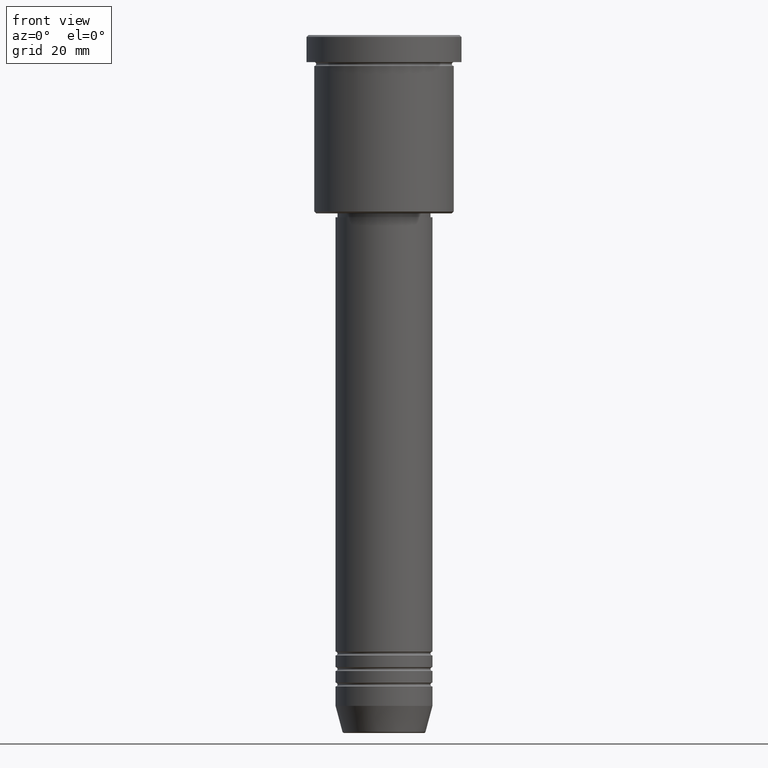
[diagram: clean part render]
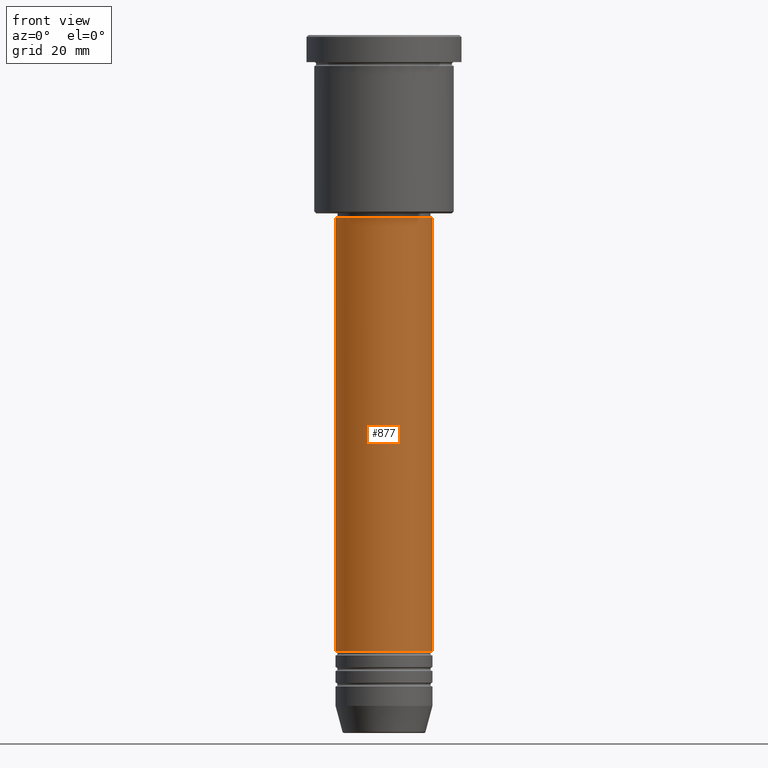
[diagram: same view with one face highlighted and labeled with its STEP entity id]
A machine part, front view. The second image highlights one B-rep face of the part: STEP entity #877.
In plain terms, the highlighted cylindrical surface (partial cylindrical patch) has radius 12.5 mm, axis along (-0, -0, 1).
Its self-contained STEP definition (entity closure, byte-faithful):
#16 = EDGE_CURVE ( 'NONE', #895, #532, #1064, .T. ) ;
#27 = CARTESIAN_POINT ( 'NONE',  ( 0.000000000000000000, 0.000000000000000000, -47.00000000000003553 ) ) ;
#49 = CARTESIAN_POINT ( 'NONE',  ( 12.50000000000000000, 0.000000000000000000, 0.000000000000000000 ) ) ;
#86 = LINE ( 'NONE', #454, #489 ) ;
#134 = ORIENTED_EDGE ( 'NONE', *, *, #623, .F. ) ;
#186 = DIRECTION ( 'NONE',  ( 1.000000000000000000, 0.000000000000000000, 0.000000000000000000 ) ) ;
#198 = VERTEX_POINT ( 'NONE', #568 ) ;
#230 = ORIENTED_EDGE ( 'NONE', *, *, #16, .T. ) ;
#272 = CARTESIAN_POINT ( 'NONE',  ( -12.50000000000000000, 1.530808498934191521E-15, -159.0000000000000000 ) ) ;
#289 = DIRECTION ( 'NONE',  ( -0.000000000000000000, -0.000000000000000000, 1.000000000000000000 ) ) ;
#302 = AXIS2_PLACEMENT_3D ( 'NONE', #27, #750, #669 ) ;
#404 = VERTEX_POINT ( 'NONE', #1112 ) ;
#454 = CARTESIAN_POINT ( 'NONE',  ( -12.50000000000000000, 1.530808498934191521E-15, 0.000000000000000000 ) ) ;
#455 = VECTOR ( 'NONE', #778, 1000.000000000000000 ) ;
#489 = VECTOR ( 'NONE', #934, 1000.000000000000000 ) ;
#532 = VERTEX_POINT ( 'NONE', #717 ) ;
#550 = CARTESIAN_POINT ( 'NONE',  ( 0.000000000000000000, 0.000000000000000000, 0.000000000000000000 ) ) ;
#553 = CARTESIAN_POINT ( 'NONE',  ( 0.000000000000000000, 0.000000000000000000, -159.0000000000000000 ) ) ;
#568 = CARTESIAN_POINT ( 'NONE',  ( 12.50000000000000000, 0.000000000000000000, -47.00000000000003553 ) ) ;
#612 = ORIENTED_EDGE ( 'NONE', *, *, #1161, .T. ) ;
#622 = CYLINDRICAL_SURFACE ( 'NONE', #852, 12.50000000000000000 ) ;
#623 = EDGE_CURVE ( 'NONE', #404, #198, #1179, .T. ) ;
#669 = DIRECTION ( 'NONE',  ( 1.000000000000000000, 0.000000000000000000, 0.000000000000000000 ) ) ;
#705 = ORIENTED_EDGE ( 'NONE', *, *, #1071, .F. ) ;
#717 = CARTESIAN_POINT ( 'NONE',  ( 12.50000000000000000, 0.000000000000000000, -159.0000000000000000 ) ) ;
#742 = AXIS2_PLACEMENT_3D ( 'NONE', #553, #289, #1183 ) ;
#750 = DIRECTION ( 'NONE',  ( -0.000000000000000000, -0.000000000000000000, 1.000000000000000000 ) ) ;
#778 = DIRECTION ( 'NONE',  ( -0.000000000000000000, -0.000000000000000000, 1.000000000000000000 ) ) ;
#810 = DIRECTION ( 'NONE',  ( -0.000000000000000000, -0.000000000000000000, 1.000000000000000000 ) ) ;
#852 = AXIS2_PLACEMENT_3D ( 'NONE', #550, #810, #186 ) ;
#877 = ADVANCED_FACE ( 'NONE', ( #991 ), #622, .T. ) ;
#895 = VERTEX_POINT ( 'NONE', #272 ) ;
#934 = DIRECTION ( 'NONE',  ( -0.000000000000000000, -0.000000000000000000, 1.000000000000000000 ) ) ;
#944 = EDGE_LOOP ( 'NONE', ( #705, #230, #612, #134 ) ) ;
#991 = FACE_OUTER_BOUND ( 'NONE', #944, .T. ) ;
#1047 = LINE ( 'NONE', #49, #455 ) ;
#1064 = CIRCLE ( 'NONE', #742, 12.50000000000000000 ) ;
#1071 = EDGE_CURVE ( 'NONE', #895, #404, #86, .T. ) ;
#1112 = CARTESIAN_POINT ( 'NONE',  ( -12.50000000000000000, 1.530808498934191521E-15, -47.00000000000003553 ) ) ;
#1161 = EDGE_CURVE ( 'NONE', #532, #198, #1047, .T. ) ;
#1179 = CIRCLE ( 'NONE', #302, 12.50000000000000000 ) ;
#1183 = DIRECTION ( 'NONE',  ( 1.000000000000000000, 0.000000000000000000, 0.000000000000000000 ) ) ;